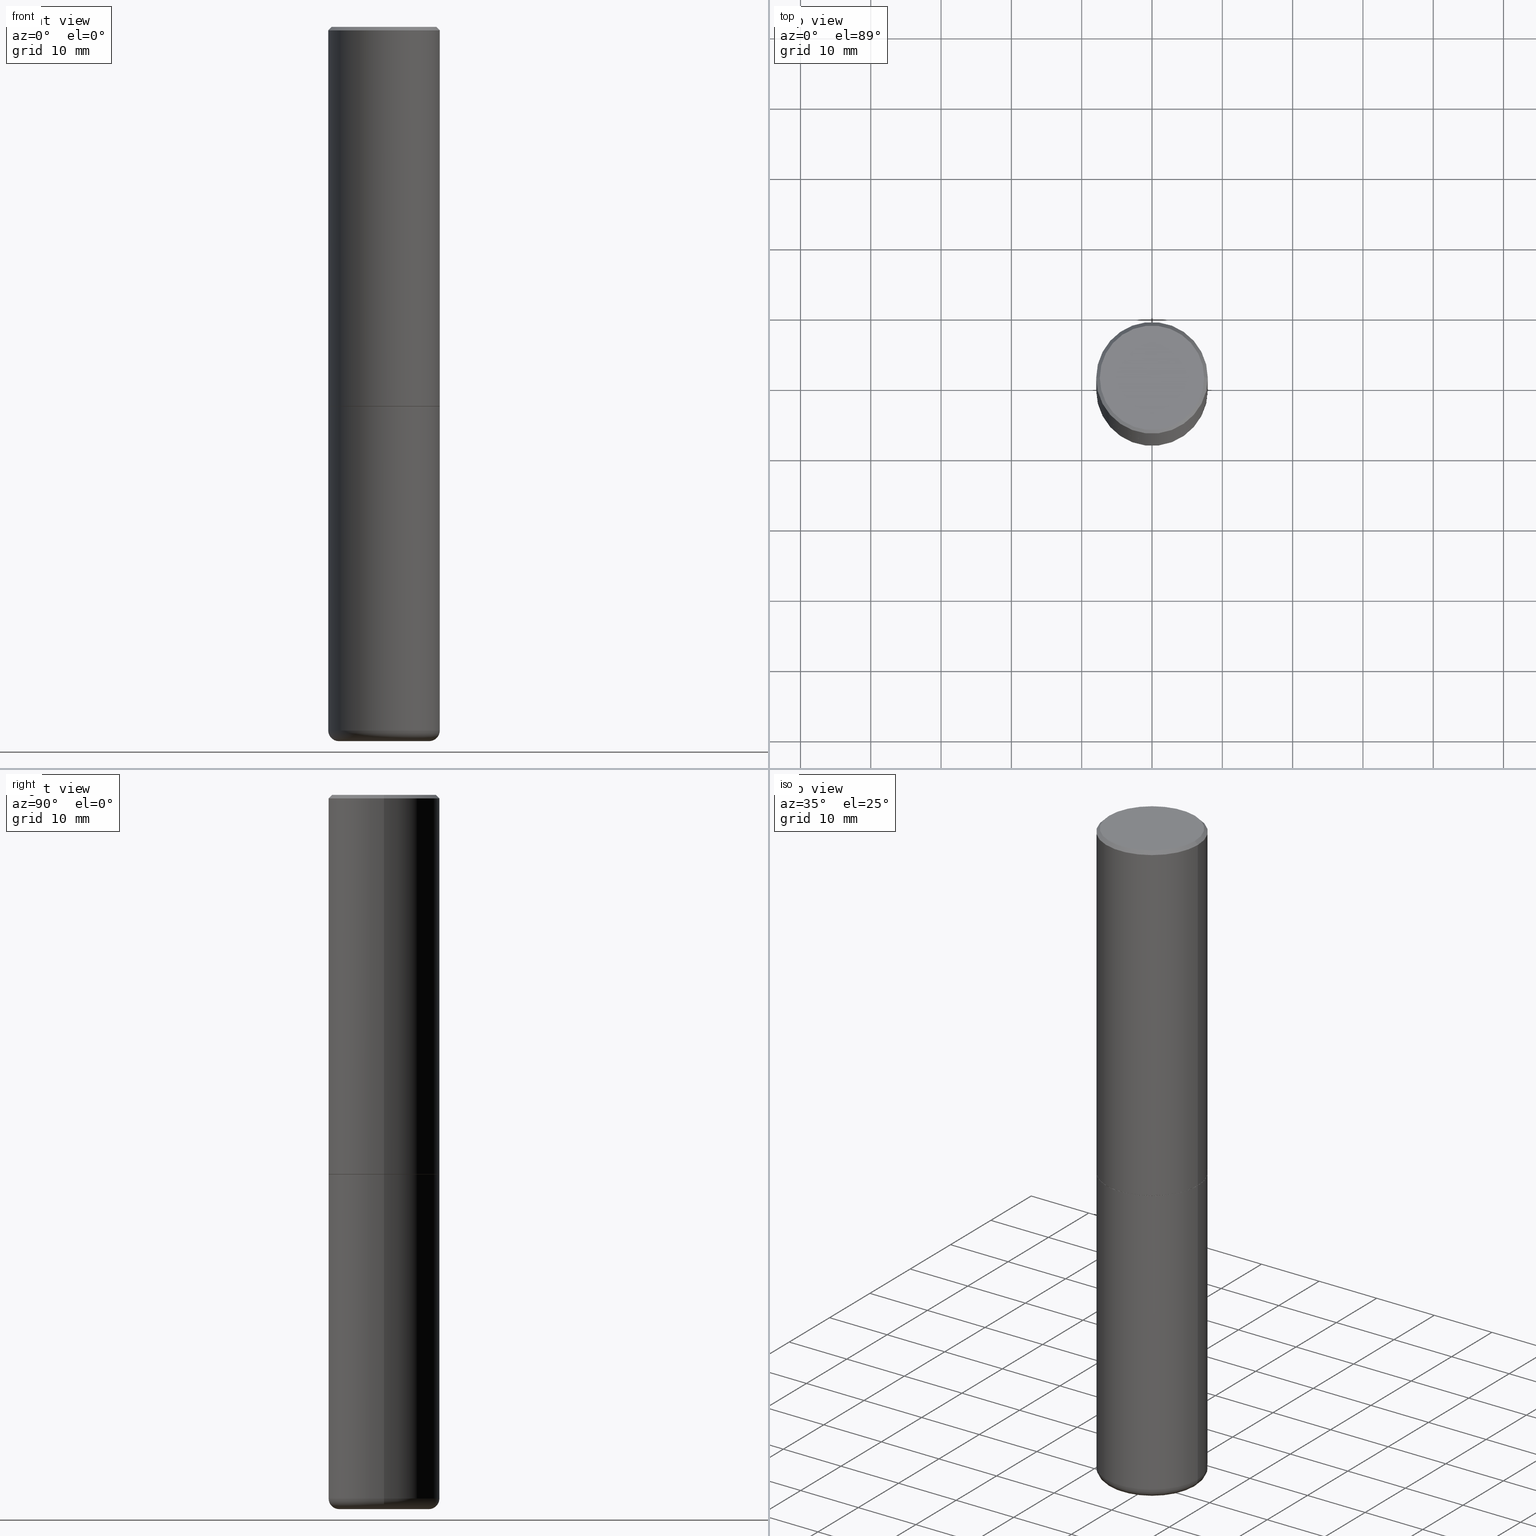
[diagram: canonical four-view strip — front | top / right | iso, engineering-drawing reading convention]
A machine part, canonical four-view strip (front | top / right | iso — engineering-drawing reading convention). The complete STEP part file that produces these views, byte-faithful:
ISO-10303-21;
HEADER;
FILE_DESCRIPTION (( 'STEP AP203' ),
    '1' );
FILE_NAME ('77396.STEP',
    '2024-05-02T19:36:04',
    ( '' ),
    ( '' ),
    'SwSTEP 2.0',
    'SolidWorks 2023',
    '' );
FILE_SCHEMA (( 'CONFIG_CONTROL_DESIGN' ));
ENDSEC;

DATA;
#1 = EDGE_CURVE ( 'NONE', #283, #264, #153, .T. ) ;
#2 = DATE_AND_TIME ( #92, #38 ) ;
#3 = AXIS2_PLACEMENT_3D ( 'NONE', #329, #66, #107 ) ;
#4 = COORDINATED_UNIVERSAL_TIME_OFFSET ( 5, 0, .BEHIND. ) ;
#5 = TOROIDAL_SURFACE ( 'NONE', #161, 0.2525000000000000022, 0.06000000000000023370 ) ;
#6 = AXIS2_PLACEMENT_3D ( 'NONE', #221, #360, #166 ) ;
#7 = CARTESIAN_POINT ( 'NONE',  ( 5.196621213143415268E-29, -7.419397845041683624E-15, -2.125000000000000000 ) ) ;
#8 = PERSON_AND_ORGANIZATION_ROLE ( 'classification_officer' ) ;
#9 = EDGE_LOOP ( 'NONE', ( #99, #191 ) ) ;
#10 = PLANE ( 'NONE',  #326 ) ;
#11 = PERSON_AND_ORGANIZATION ( #242, #59 ) ;
#12 = ORIENTED_EDGE ( 'NONE', *, *, #35, .T. ) ;
#13 = CARTESIAN_POINT ( 'NONE',  ( -0.2925000000000002043, 2.077431396611664583E-15, -2.006200870347337854E-16 ) ) ;
#14 = CALENDAR_DATE ( 2024, 2, 5 ) ;
#15 = VERTEX_POINT ( 'NONE', #119 ) ;
#16 = CC_DESIGN_APPROVAL ( #220, ( #91 ) ) ;
#17 = DIRECTION ( 'NONE',  ( 1.000000000000000000, -6.982962677686266711E-15, 4.876176775795936353E-29 ) ) ;
#18 = ORIENTED_EDGE ( 'NONE', *, *, #323, .F. ) ;
#19 = DIRECTION ( 'NONE',  ( 0.000000000000000000, 0.000000000000000000, 1.000000000000000000 ) ) ;
#20 = EDGE_CURVE ( 'NONE', #301, #283, #60, .T. ) ;
#21 = ORIENTED_EDGE ( 'NONE', *, *, #155, .F. ) ;
#22 = PRODUCT ( '77396', '77396', '', ( #114 ) ) ;
#23 = FACE_OUTER_BOUND ( 'NONE', #43, .T. ) ;
#24 = AXIS2_PLACEMENT_3D ( 'NONE', #225, #101, #371 ) ;
#25 = DIRECTION ( 'NONE',  ( 7.105427357601001859E-15, 1.000000000000000000, -3.491481338843145583E-15 ) ) ;
#26 = VERTEX_POINT ( 'NONE', #307 ) ;
#27 = CC_DESIGN_PERSON_AND_ORGANIZATION_ASSIGNMENT ( #11, #263, ( #91 ) ) ;
#28 = CARTESIAN_POINT ( 'NONE',  ( 5.196621213143415268E-29, -7.419397845041683624E-15, -2.125000000000000000 ) ) ;
#29 = CIRCLE ( 'NONE', #179, 0.3125000000000000000 ) ;
#30 = AXIS2_PLACEMENT_3D ( 'NONE', #58, #93, #378 ) ;
#31 = ADVANCED_FACE ( 'NONE', ( #23 ), #178, .T. ) ;
#32 = APPROVAL_ROLE ( '' ) ;
#33 = AXIS2_PLACEMENT_3D ( 'NONE', #356, #74, #195 ) ;
#34 = EDGE_CURVE ( 'NONE', #327, #224, #393, .T. ) ;
#35 = EDGE_CURVE ( 'NONE', #15, #224, #208, .T. ) ;
#36 = CARTESIAN_POINT ( 'NONE',  ( -0.2525000000000000022, -1.185389768668500455E-14, -4.000000000000000888 ) ) ;
#37 = DIRECTION ( 'NONE',  ( -2.445468806185136597E-29, 3.491481338843145583E-15, 1.000000000000000000 ) ) ;
#38 = LOCAL_TIME ( 15, 36, 4.000000000000000000, #418 ) ;
#39 = VERTEX_POINT ( 'NONE', #157 ) ;
#40 = CONICAL_SURFACE ( 'NONE', #212, 0.3114999999999999991, 0.7853981633975507526 ) ;
#41 = VERTEX_POINT ( 'NONE', #228 ) ;
#42 = CARTESIAN_POINT ( 'NONE',  ( 5.196621213143415268E-29, -7.419397845041683624E-15, -2.125000000000000000 ) ) ;
#43 = EDGE_LOOP ( 'NONE', ( #348, #197, #304, #168 ) ) ;
#44 = ORIENTED_EDGE ( 'NONE', *, *, #1, .F. ) ;
#45 = AXIS2_PLACEMENT_3D ( 'NONE', #186, #190, #71 ) ;
#46 = EDGE_CURVE ( 'NONE', #224, #327, #312, .T. ) ;
#47 = CARTESIAN_POINT ( 'NONE',  ( 9.781875224740547508E-29, -1.396592535537258391E-14, -4.000000000000000888 ) ) ;
#48 = DIRECTION ( 'NONE',  ( 1.000000000000000000, -6.982962677686266711E-15, 4.873475059489872853E-29 ) ) ;
#49 = CARTESIAN_POINT ( 'NONE',  ( 4.890937612370289799E-31, -6.982962677686315028E-17, -0.02000000000000006981 ) ) ;
#50 = EDGE_LOOP ( 'NONE', ( #262, #138, #227, #226 ) ) ;
#51 = DIRECTION ( 'NONE',  ( -2.445468806185136597E-29, 3.491481338843145583E-15, 1.000000000000000000 ) ) ;
#52 = ADVANCED_FACE ( 'NONE', ( #110 ), #102, .T. ) ;
#53 = EDGE_CURVE ( 'NONE', #173, #167, #72, .T. ) ;
#54 = CARTESIAN_POINT ( 'NONE',  ( 0.3125000000000002776, -9.598082200479802119E-15, -2.123999999999999666 ) ) ;
#55 = CARTESIAN_POINT ( 'NONE',  ( 5.194175744337229665E-29, -7.415906363702840616E-15, -2.123999999999999666 ) ) ;
#56 = PLANE ( 'NONE',  #256 ) ;
#57 = DIRECTION ( 'NONE',  ( 1.000000000000000000, -6.982962677686266711E-15, 0.000000000000000000 ) ) ;
#58 = CARTESIAN_POINT ( 'NONE',  ( 5.196621213143415268E-29, -7.419397845041683624E-15, -2.125000000000000000 ) ) ;
#59 = ORGANIZATION ( 'UNSPECIFIED', 'UNSPECIFIED', '' ) ;
#60 = LINE ( 'NONE', #175, #300 ) ;
#61 = DIRECTION ( 'NONE',  ( -1.000000000000000000, 6.982962677686265922E-15, -4.876176775795935793E-29 ) ) ;
#62 = CARTESIAN_POINT ( 'NONE',  ( 0.3125000000000000000, -2.182175836776958347E-15, 1.523805242436230075E-29 ) ) ;
#63 = DIRECTION ( 'NONE',  ( -2.445468806185136597E-29, 3.491481338843145583E-15, 1.000000000000000000 ) ) ;
#64 = APPROVAL_PERSON_ORGANIZATION ( #233, #313, #32 ) ;
#65 = EDGE_CURVE ( 'NONE', #73, #269, #100, .T. ) ;
#66 = DIRECTION ( 'NONE',  ( -2.445468806185136597E-29, 3.491481338843145583E-15, 1.000000000000000000 ) ) ;
#67 = APPROVAL_PERSON_ORGANIZATION ( #351, #403, #106 ) ;
#68 = ADVANCED_FACE ( 'NONE', ( #134 ), #40, .T. ) ;
#69 = CLOSED_SHELL ( 'NONE', ( #332, #211, #349, #52, #219, #352 ) ) ;
#70 = DIRECTION ( 'NONE',  ( -2.445468806185136877E-29, 3.491481338843145188E-15, 1.000000000000000000 ) ) ;
#71 = DIRECTION ( 'NONE',  ( -1.000000000000000000, 6.982962677686266711E-15, 0.000000000000000000 ) ) ;
#72 = LINE ( 'NONE', #139, #406 ) ;
#73 = VERTEX_POINT ( 'NONE', #13 ) ;
#74 = DIRECTION ( 'NONE',  ( -2.445468806185136597E-29, 3.491481338843145583E-15, 1.000000000000000000 ) ) ;
#75 = AXIS2_PLACEMENT_3D ( 'NONE', #203, #51, #142 ) ;
#76 = ORIENTED_EDGE ( 'NONE', *, *, #315, .T. ) ;
#77 = AXIS2_PLACEMENT_3D ( 'NONE', #55, #63, #251 ) ;
#78 = CARTESIAN_POINT ( 'NONE',  ( -0.3125000000000000000, 2.112346210000095443E-15, -0.02000000000000006981 ) ) ;
#79 = EDGE_LOOP ( 'NONE', ( #85, #293, #198, #122 ) ) ;
#80 = APPLICATION_PROTOCOL_DEFINITION ( 'international standard', 'config_control_design', 1994, #187 ) ;
#81 = SHAPE_DEFINITION_REPRESENTATION ( #399, #253 ) ;
#82 = PLANE ( 'NONE',  #156 ) ;
#83 = ORIENTED_EDGE ( 'NONE', *, *, #334, .F. ) ;
#84 = CARTESIAN_POINT ( 'NONE',  ( 4.906101647375534649E-45, -7.004612900788104277E-31, -2.006200870347193887E-16 ) ) ;
#85 = ORIENTED_EDGE ( 'NONE', *, *, #309, .T. ) ;
#86 = VECTOR ( 'NONE', #385, 39.37007874015748143 ) ;
#87 = DIRECTION ( 'NONE',  ( 1.000000000000000000, -6.982962677686265922E-15, 0.000000000000000000 ) ) ;
#88 = DIRECTION ( 'NONE',  ( 1.000000000000000000, -6.982962677686266711E-15, 0.000000000000000000 ) ) ;
#89 = DIRECTION ( 'NONE',  ( -2.445468806185136877E-29, 3.491481338843145188E-15, 1.000000000000000000 ) ) ;
#90 = CARTESIAN_POINT ( 'NONE',  ( 0.3125000000000001665, -2.182175836776959530E-15, 1.523805242436230636E-29 ) ) ;
#91 = PRODUCT_DEFINITION_FORMATION_WITH_SPECIFIED_SOURCE ( 'ANY', '', #22, .NOT_KNOWN. ) ;
#92 = CALENDAR_DATE ( 2024, 2, 5 ) ;
#93 = DIRECTION ( 'NONE',  ( -2.445468806185136597E-29, 3.491481338843145583E-15, 1.000000000000000000 ) ) ;
#94 = CONICAL_SURFACE ( 'NONE', #45, 0.3125000000000000000, 0.7853981633974471688 ) ;
#95 = CARTESIAN_POINT ( 'NONE',  ( 5.194175744337229665E-29, -7.415906363702840616E-15, -2.123999999999999666 ) ) ;
#96 = VECTOR ( 'NONE', #306, 39.37007874015748143 ) ;
#97 = DIRECTION ( 'NONE',  ( -2.445468806185136597E-29, 3.491481338843145583E-15, 1.000000000000000000 ) ) ;
#98 = APPROVAL_ROLE ( '' ) ;
#99 = ORIENTED_EDGE ( 'NONE', *, *, #155, .T. ) ;
#100 = LINE ( 'NONE', #78, #361 ) ;
#101 = DIRECTION ( 'NONE',  ( -2.445468806185136597E-29, 3.491481338843145583E-15, 1.000000000000000000 ) ) ;
#102 = CYLINDRICAL_SURFACE ( 'NONE', #404, 0.3125000000000000000 ) ;
#103 = AXIS2_PLACEMENT_3D ( 'NONE', #143, #160, #336 ) ;
#104 = COORDINATED_UNIVERSAL_TIME_OFFSET ( 5, 0, .BEHIND. ) ;
#105 = ORIENTED_EDGE ( 'NONE', *, *, #53, .F. ) ;
#106 = APPROVAL_ROLE ( '' ) ;
#107 = DIRECTION ( 'NONE',  ( 1.000000000000000000, -6.982962677686265922E-15, 0.000000000000000000 ) ) ;
#108 = EDGE_LOOP ( 'NONE', ( #202, #412 ) ) ;
#109 = MANIFOLD_SOLID_BREP ( 'Body-Move/Copy2[2]', #164 ) ;
#110 = FACE_OUTER_BOUND ( 'NONE', #362, .T. ) ;
#111 =( LENGTH_UNIT ( ) NAMED_UNIT ( * ) SI_UNIT ( $, .METRE. ) );
#112 = ORIENTED_EDGE ( 'NONE', *, *, #130, .F. ) ;
#113 = FACE_OUTER_BOUND ( 'NONE', #333, .T. ) ;
#114 = MECHANICAL_CONTEXT ( 'NONE', #383, 'mechanical' ) ;
#115 = EDGE_LOOP ( 'NONE', ( #338, #18 ) ) ;
#116 = CC_DESIGN_SECURITY_CLASSIFICATION ( #236, ( #91 ) ) ;
#117 = ORIENTED_EDGE ( 'NONE', *, *, #286, .F. ) ;
#118 = PERSON_AND_ORGANIZATION_ROLE ( 'creator' ) ;
#119 = CARTESIAN_POINT ( 'NONE',  ( 0.3125000000000001665, -1.593861231181895394E-14, -3.939999999999999947 ) ) ;
#120 = CONICAL_SURFACE ( 'NONE', #3, 0.3114999999999999991, 0.7853981633975507526 ) ;
#121 = LINE ( 'NONE', #152, #86 ) ;
#122 = ORIENTED_EDGE ( 'NONE', *, *, #35, .F. ) ;
#123 = DIRECTION ( 'NONE',  ( -1.000000000000000000, 7.105427357600997914E-15, 0.000000000000000000 ) ) ;
#124 = TOROIDAL_SURFACE ( 'NONE', #103, 0.2525000000000000022, 0.06000000000000023370 ) ;
#125 = CC_DESIGN_PERSON_AND_ORGANIZATION_ASSIGNMENT ( #400, #8, ( #236 ) ) ;
#126 = DESIGN_CONTEXT ( 'detailed design', #187, 'design' ) ;
#127 = AXIS2_PLACEMENT_3D ( 'NONE', #210, #232, #379 ) ;
#128 = CARTESIAN_POINT ( 'NONE',  ( 4.906101647375534649E-45, -7.004612900788104277E-31, -2.006200870347193887E-16 ) ) ;
#129 = DIRECTION ( 'NONE',  ( 1.000000000000000000, -6.982962677686264344E-15, 4.883557194083112340E-29 ) ) ;
#130 = EDGE_CURVE ( 'NONE', #173, #73, #154, .T. ) ;
#131 = CALENDAR_DATE ( 2024, 2, 5 ) ;
#132 = CARTESIAN_POINT ( 'NONE',  ( 4.890937612370289799E-31, -6.982962677686315028E-17, -0.02000000000000006981 ) ) ;
#133 = EDGE_LOOP ( 'NONE', ( #231, #295, #330, #355 ) ) ;
#134 = FACE_OUTER_BOUND ( 'NONE', #150, .T. ) ;
#135 = ORIENTED_EDGE ( 'NONE', *, *, #286, .T. ) ;
#136 = PERSON_AND_ORGANIZATION ( #242, #59 ) ;
#137 = LOCAL_TIME ( 15, 36, 4.000000000000000000, #4 ) ;
#138 = ORIENTED_EDGE ( 'NONE', *, *, #184, .T. ) ;
#139 = CARTESIAN_POINT ( 'NONE',  ( 0.3125000000000000000, -2.213735251080466911E-15, -0.02000000000000006981 ) ) ;
#140 = ORIENTED_EDGE ( 'NONE', *, *, #20, .T. ) ;
#141 = ORIENTED_EDGE ( 'NONE', *, *, #158, .T. ) ;
#142 = DIRECTION ( 'NONE',  ( 1.000000000000000000, -6.982962677686266711E-15, 4.876176775795935232E-29 ) ) ;
#143 = CARTESIAN_POINT ( 'NONE',  ( 9.635147096369438236E-29, -1.375643647504199401E-14, -3.939999999999999947 ) ) ;
#144 = LENGTH_MEASURE_WITH_UNIT ( LENGTH_MEASURE( 0.02539999999999999897 ), #111 );
#145 =( GEOMETRIC_REPRESENTATION_CONTEXT ( 3 ) GLOBAL_UNCERTAINTY_ASSIGNED_CONTEXT ( ( #223 ) ) GLOBAL_UNIT_ASSIGNED_CONTEXT ( ( #276, #172, #177 ) ) REPRESENTATION_CONTEXT ( 'NONE', 'WORKASPACE' ) );
#146 = EDGE_CURVE ( 'NONE', #41, #264, #287, .T. ) ;
#147 = CARTESIAN_POINT ( 'NONE',  ( 0.000000000000000000, 0.000000000000000000, 0.000000000000000000 ) ) ;
#148 = ORIENTED_EDGE ( 'NONE', *, *, #65, .T. ) ;
#149 = DIRECTION ( 'NONE',  ( -2.445468806185136597E-29, 3.491481338843145583E-15, 1.000000000000000000 ) ) ;
#150 = EDGE_LOOP ( 'NONE', ( #366, #141, #171, #44 ) ) ;
#151 = CC_DESIGN_DATE_AND_TIME_ASSIGNMENT ( #328, #159, ( #236 ) ) ;
#152 = CARTESIAN_POINT ( 'NONE',  ( -0.3125000000000001665, 2.220446049250314264E-15, -1.537167215704658792E-29 ) ) ;
#153 = CIRCLE ( 'NONE', #77, 0.3125000000000002776 ) ;
#154 = CIRCLE ( 'NONE', #318, 0.2925000000000002043 ) ;
#155 = EDGE_CURVE ( 'NONE', #73, #173, #243, .T. ) ;
#156 = AXIS2_PLACEMENT_3D ( 'NONE', #278, #285, #244 ) ;
#157 = CARTESIAN_POINT ( 'NONE',  ( -0.3125000000000001665, -1.153599042579167936E-14, -3.939999999999999947 ) ) ;
#158 = EDGE_CURVE ( 'NONE', #301, #41, #246, .T. ) ;
#159 = DATE_TIME_ROLE ( 'classification_date' ) ;
#160 = DIRECTION ( 'NONE',  ( -2.445468806185136597E-29, 3.491481338843145583E-15, 1.000000000000000000 ) ) ;
#161 = AXIS2_PLACEMENT_3D ( 'NONE', #271, #392, #129 ) ;
#162 = DIRECTION ( 'NONE',  ( 1.000000000000000000, -6.982962677686265922E-15, 0.000000000000000000 ) ) ;
#163 = CARTESIAN_POINT ( 'NONE',  ( -0.3125000000000000000, 2.220446049250313081E-15, -1.537167215704658232E-29 ) ) ;
#164 = CLOSED_SHELL ( 'NONE', ( #373, #31, #217, #235, #343, #68, #394, #382 ) ) ;
#165 = ORIENTED_EDGE ( 'NONE', *, *, #53, .T. ) ;
#166 = DIRECTION ( 'NONE',  ( 1.000000000000000000, -6.982962677686269077E-15, 0.000000000000000000 ) ) ;
#167 = VERTEX_POINT ( 'NONE', #260 ) ;
#168 = ORIENTED_EDGE ( 'NONE', *, *, #416, .F. ) ;
#169 = LOCAL_TIME ( 15, 36, 4.000000000000000000, #230 ) ;
#170 = CARTESIAN_POINT ( 'NONE',  ( 0.2525000000000000022, -1.551963455115777730E-14, -3.939999999999999947 ) ) ;
#171 = ORIENTED_EDGE ( 'NONE', *, *, #146, .T. ) ;
#172 =( NAMED_UNIT ( * ) PLANE_ANGLE_UNIT ( ) SI_UNIT ( $, .RADIAN. ) );
#173 = VERTEX_POINT ( 'NONE', #396 ) ;
#174 = DIRECTION ( 'NONE',  ( -1.000000000000000000, 6.982962677686266711E-15, 0.000000000000000000 ) ) ;
#175 = CARTESIAN_POINT ( 'NONE',  ( -0.3114999999999999991, -5.206057223148971551E-15, -2.125000000000000000 ) ) ;
#176 = LINE ( 'NONE', #163, #387 ) ;
#177 =( NAMED_UNIT ( * ) SI_UNIT ( $, .STERADIAN. ) SOLID_ANGLE_UNIT ( ) );
#178 = CYLINDRICAL_SURFACE ( 'NONE', #415, 0.3125000000000001665 ) ;
#179 = AXIS2_PLACEMENT_3D ( 'NONE', #414, #342, #57 ) ;
#180 = EDGE_CURVE ( 'NONE', #26, #259, #345, .T. ) ;
#181 = ORIENTED_EDGE ( 'NONE', *, *, #1, .T. ) ;
#182 = AXIS2_PLACEMENT_3D ( 'NONE', #294, #25, #123 ) ;
#183 = CIRCLE ( 'NONE', #182, 0.06000000000000021289 ) ;
#184 = EDGE_CURVE ( 'NONE', #259, #39, #183, .T. ) ;
#185 = AXIS2_PLACEMENT_3D ( 'NONE', #28, #149, #87 ) ;
#186 = CARTESIAN_POINT ( 'NONE',  ( 4.890937612370289799E-31, -6.982962677686315028E-17, -0.02000000000000006981 ) ) ;
#187 = APPLICATION_CONTEXT ( 'configuration controlled 3d designs of mechanical parts and assemblies' ) ;
#188 = DIRECTION ( 'NONE',  ( 1.000000000000000000, -6.982962677686266711E-15, 4.873475059489872853E-29 ) ) ;
#189 = PERSON_AND_ORGANIZATION ( #242, #59 ) ;
#190 = DIRECTION ( 'NONE',  ( 2.445468806185136597E-29, -3.491481338843145583E-15, -1.000000000000000000 ) ) ;
#191 = ORIENTED_EDGE ( 'NONE', *, *, #130, .T. ) ;
#192 = DIRECTION ( 'NONE',  ( 1.000000000000000000, -6.982962677686269077E-15, 0.000000000000000000 ) ) ;
#193 = FACE_OUTER_BOUND ( 'NONE', #115, .T. ) ;
#194 = CIRCLE ( 'NONE', #24, 0.3125000000000000000 ) ;
#195 = DIRECTION ( 'NONE',  ( 1.000000000000000000, -6.982962677686269866E-15, 0.000000000000000000 ) ) ;
#196 = ORIENTED_EDGE ( 'NONE', *, *, #334, .T. ) ;
#197 = ORIENTED_EDGE ( 'NONE', *, *, #363, .T. ) ;
#198 = ORIENTED_EDGE ( 'NONE', *, *, #46, .F. ) ;
#199 = DIRECTION ( 'NONE',  ( 1.000000000000000000, -6.982962677686265922E-15, 0.000000000000000000 ) ) ;
#200 = CC_DESIGN_APPROVAL ( #403, ( #236 ) ) ;
#201 = CARTESIAN_POINT ( 'NONE',  ( 0.3125000000000000000, -9.601573681818641971E-15, -2.125000000000000000 ) ) ;
#202 = ORIENTED_EDGE ( 'NONE', *, *, #46, .T. ) ;
#203 = CARTESIAN_POINT ( 'NONE',  ( 0.000000000000000000, 0.000000000000000000, 0.000000000000000000 ) ) ;
#204 = EDGE_CURVE ( 'NONE', #264, #283, #284, .T. ) ;
#205 = CARTESIAN_POINT ( 'NONE',  ( -0.3114999999999999991, -5.200758768800747571E-15, -2.125000000000000000 ) ) ;
#206 = FACE_OUTER_BOUND ( 'NONE', #375, .T. ) ;
#207 = ORIENTED_EDGE ( 'NONE', *, *, #254, .T. ) ;
#208 = LINE ( 'NONE', #62, #257 ) ;
#209 = AXIS2_PLACEMENT_3D ( 'NONE', #147, #19, #347 ) ;
#210 = CARTESIAN_POINT ( 'NONE',  ( 0.000000000000000000, 0.000000000000000000, 0.000000000000000000 ) ) ;
#211 = ADVANCED_FACE ( 'NONE', ( #255 ), #5, .T. ) ;
#212 = AXIS2_PLACEMENT_3D ( 'NONE', #42, #266, #199 ) ;
#213 = APPROVAL_DATE_TIME ( #2, #313 ) ;
#214 = ORIENTED_EDGE ( 'NONE', *, *, #158, .F. ) ;
#215 = LOCAL_TIME ( 15, 36, 4.000000000000000000, #248 ) ;
#216 = DIRECTION ( 'NONE',  ( -1.000000000000000000, 6.982962677686265922E-15, -4.876176775795935793E-29 ) ) ;
#217 = ADVANCED_FACE ( 'NONE', ( #113 ), #94, .T. ) ;
#218 = AXIS2_PLACEMENT_3D ( 'NONE', #132, #237, #174 ) ;
#219 = ADVANCED_FACE ( 'NONE', ( #320 ), #124, .T. ) ;
#220 = APPROVAL ( #319, 'UNSPECIFIED' ) ;
#221 = CARTESIAN_POINT ( 'NONE',  ( 5.196621213143415268E-29, -7.419397845041683624E-15, -2.125000000000000000 ) ) ;
#222 = DATE_AND_TIME ( #258, #137 ) ;
#223 = UNCERTAINTY_MEASURE_WITH_UNIT (LENGTH_MEASURE( 1.000000000000000082E-05 ), #276, 'distance_accuracy_value', 'NONE');
#224 = VERTEX_POINT ( 'NONE', #201 ) ;
#225 = CARTESIAN_POINT ( 'NONE',  ( 9.635147096369438236E-29, -1.375643647504199401E-14, -3.939999999999999947 ) ) ;
#226 = ORIENTED_EDGE ( 'NONE', *, *, #388, .F. ) ;
#227 = ORIENTED_EDGE ( 'NONE', *, *, #309, .F. ) ;
#228 = CARTESIAN_POINT ( 'NONE',  ( 0.3114999999999999991, -9.594590719140955956E-15, -2.125000000000000000 ) ) ;
#229 = DIRECTION ( 'NONE',  ( -6.982962677686266711E-15, -1.000000000000000000, 3.491481338843145583E-15 ) ) ;
#230 = COORDINATED_UNIVERSAL_TIME_OFFSET ( 5, 0, .BEHIND. ) ;
#231 = ORIENTED_EDGE ( 'NONE', *, *, #184, .F. ) ;
#232 = DIRECTION ( 'NONE',  ( -2.445468806185136597E-29, 3.491481338843145583E-15, 1.000000000000000000 ) ) ;
#233 = PERSON_AND_ORGANIZATION ( #242, #59 ) ;
#234 = EDGE_LOOP ( 'NONE', ( #196, #140, #359, #398 ) ) ;
#235 = ADVANCED_FACE ( 'NONE', ( #324 ), #346, .T. ) ;
#236 = SECURITY_CLASSIFICATION ( '', '', #291 ) ;
#237 = DIRECTION ( 'NONE',  ( 2.445468806185136597E-29, -3.491481338843145583E-15, -1.000000000000000000 ) ) ;
#238 = CC_DESIGN_PERSON_AND_ORGANIZATION_ASSIGNMENT ( #136, #267, ( #22 ) ) ;
#239 = DIRECTION ( 'NONE',  ( 1.000000000000000000, -6.982962677686269866E-15, 0.000000000000000000 ) ) ;
#240 = DATE_TIME_ROLE ( 'creation_date' ) ;
#241 = CALENDAR_DATE ( 2024, 2, 5 ) ;
#242 = PERSON ( 'UNSPECIFIED', 'UNSPECIFIED', 'UNSPECIFIED', ('UNSPECIFIED'), ('UNSPECIFIED'), ('UNSPECIFIED') ) ;
#243 = CIRCLE ( 'NONE', #350, 0.2925000000000002043 ) ;
#244 = DIRECTION ( 'NONE',  ( -1.000000000000000000, 6.982962677686265922E-15, -4.876176775795935793E-29 ) ) ;
#245 = DIRECTION ( 'NONE',  ( -2.445468806185136597E-29, 3.491481338843145583E-15, 1.000000000000000000 ) ) ;
#246 = CIRCLE ( 'NONE', #411, 0.3114999999999999991 ) ;
#247 = FACE_OUTER_BOUND ( 'NONE', #79, .T. ) ;
#248 = COORDINATED_UNIVERSAL_TIME_OFFSET ( 5, 0, .BEHIND. ) ;
#249 = DIRECTION ( 'NONE',  ( -0.7071067811866199593, 7.493145998870616062E-15, 0.7071067811864750752 ) ) ;
#250 = LOCAL_TIME ( 15, 36, 4.000000000000000000, #104 ) ;
#251 = DIRECTION ( 'NONE',  ( 1.000000000000000000, -6.982962677686269077E-15, 0.000000000000000000 ) ) ;
#252 = CIRCLE ( 'NONE', #265, 0.3125000000000000000 ) ;
#253 = ADVANCED_BREP_SHAPE_REPRESENTATION ( '77396', ( #390, #109, #209 ), #145 ) ;
#254 = EDGE_CURVE ( 'NONE', #39, #15, #194, .T. ) ;
#255 = FACE_OUTER_BOUND ( 'NONE', #50, .T. ) ;
#256 = AXIS2_PLACEMENT_3D ( 'NONE', #374, #364, #61 ) ;
#257 = VECTOR ( 'NONE', #70, 39.37007874015748143 ) ;
#258 = CALENDAR_DATE ( 2024, 2, 5 ) ;
#259 = VERTEX_POINT ( 'NONE', #36 ) ;
#260 = CARTESIAN_POINT ( 'NONE',  ( 0.3125000000000000000, -2.213735251080466911E-15, -0.02000000000000006981 ) ) ;
#261 = CARTESIAN_POINT ( 'NONE',  ( 9.635147096369438236E-29, -1.375643647504199401E-14, -3.939999999999999947 ) ) ;
#262 = ORIENTED_EDGE ( 'NONE', *, *, #180, .T. ) ;
#263 = PERSON_AND_ORGANIZATION_ROLE ( 'design_supplier' ) ;
#264 = VERTEX_POINT ( 'NONE', #54 ) ;
#265 = AXIS2_PLACEMENT_3D ( 'NONE', #49, #289, #88 ) ;
#266 = DIRECTION ( 'NONE',  ( -2.445468806185136597E-29, 3.491481338843145583E-15, 1.000000000000000000 ) ) ;
#267 = PERSON_AND_ORGANIZATION_ROLE ( 'design_owner' ) ;
#268 = DIRECTION ( 'NONE',  ( -0.7071067811865466846, 2.468850131082247989E-15, -0.7071067811865483499 ) ) ;
#269 = VERTEX_POINT ( 'NONE', #292 ) ;
#270 = CYLINDRICAL_SURFACE ( 'NONE', #127, 0.3125000000000000000 ) ;
#271 = CARTESIAN_POINT ( 'NONE',  ( 9.635147096369438236E-29, -1.375643647504199401E-14, -3.939999999999999947 ) ) ;
#272 = APPLICATION_PROTOCOL_DEFINITION ( 'international standard', 'config_control_design', 1994, #383 ) ;
#273 = EDGE_CURVE ( 'NONE', #39, #327, #176, .T. ) ;
#274 = CIRCLE ( 'NONE', #380, 0.3125000000000000000 ) ;
#275 = DIRECTION ( 'NONE',  ( 1.000000000000000000, -6.982962677686269077E-15, 0.000000000000000000 ) ) ;
#276 =( CONVERSION_BASED_UNIT ( 'INCH', #144 ) LENGTH_UNIT ( ) NAMED_UNIT ( #386 ) );
#277 = PERSON_AND_ORGANIZATION ( #242, #59 ) ;
#278 = CARTESIAN_POINT ( 'NONE',  ( 2.042516583223234117E-15, 0.2925000000000002043, -1.121568335128980438E-15 ) ) ;
#279 = CC_DESIGN_PERSON_AND_ORGANIZATION_ASSIGNMENT ( #189, #397, ( #91 ) ) ;
#280 = FACE_OUTER_BOUND ( 'NONE', #9, .T. ) ;
#281 = EDGE_LOOP ( 'NONE', ( #105, #21, #148, #135 ) ) ;
#282 = CIRCLE ( 'NONE', #413, 0.06000000000000021289 ) ;
#283 = VERTEX_POINT ( 'NONE', #305 ) ;
#284 = CIRCLE ( 'NONE', #402, 0.3125000000000002776 ) ;
#285 = DIRECTION ( 'NONE',  ( 2.438088387897960049E-29, -3.491481338843145188E-15, -1.000000000000000000 ) ) ;
#286 = EDGE_CURVE ( 'NONE', #269, #167, #252, .T. ) ;
#287 = LINE ( 'NONE', #368, #377 ) ;
#288 = DATE_AND_TIME ( #131, #169 ) ;
#289 = DIRECTION ( 'NONE',  ( -2.445468806185136597E-29, 3.491481338843145583E-15, 1.000000000000000000 ) ) ;
#290 = DIRECTION ( 'NONE',  ( -2.445468806185136597E-29, 3.491481338843145583E-15, 1.000000000000000000 ) ) ;
#291 = SECURITY_CLASSIFICATION_LEVEL ( 'unclassified' ) ;
#292 = CARTESIAN_POINT ( 'NONE',  ( -0.3125000000000000000, 2.112346210000095443E-15, -0.02000000000000006981 ) ) ;
#293 = ORIENTED_EDGE ( 'NONE', *, *, #273, .T. ) ;
#294 = CARTESIAN_POINT ( 'NONE',  ( -0.2525000000000000022, -1.196231606724773985E-14, -3.939999999999999947 ) ) ;
#295 = ORIENTED_EDGE ( 'NONE', *, *, #323, .T. ) ;
#296 = ORIENTED_EDGE ( 'NONE', *, *, #34, .F. ) ;
#297 = CIRCLE ( 'NONE', #185, 0.3114999999999999991 ) ;
#298 = CIRCLE ( 'NONE', #311, 0.2525000000000000022 ) ;
#299 = PLANE ( 'NONE',  #417 ) ;
#300 = VECTOR ( 'NONE', #249, 39.37007874015748143 ) ;
#301 = VERTEX_POINT ( 'NONE', #205 ) ;
#302 = PRODUCT_DEFINITION ( 'UNKNOWN', '', #91, #126 ) ;
#303 = CC_DESIGN_DATE_AND_TIME_ASSIGNMENT ( #310, #240, ( #302 ) ) ;
#304 = ORIENTED_EDGE ( 'NONE', *, *, #315, .F. ) ;
#305 = CARTESIAN_POINT ( 'NONE',  ( -0.3125000000000002776, -1.522421945989534932E-15, -2.123999999999999666 ) ) ;
#306 = DIRECTION ( 'NONE',  ( -2.445468806185136877E-29, 3.491481338843145188E-15, 1.000000000000000000 ) ) ;
#307 = CARTESIAN_POINT ( 'NONE',  ( 0.2525000000000000022, -1.572912343148836720E-14, -4.000000000000000888 ) ) ;
#308 = CARTESIAN_POINT ( 'NONE',  ( -0.3125000000000000000, -8.367471110791524949E-15, -2.125000000000000000 ) ) ;
#309 = EDGE_CURVE ( 'NONE', #15, #39, #274, .T. ) ;
#310 = DATE_AND_TIME ( #241, #215 ) ;
#311 = AXIS2_PLACEMENT_3D ( 'NONE', #47, #376, #239 ) ;
#312 = CIRCLE ( 'NONE', #6, 0.3125000000000000000 ) ;
#313 = APPROVAL ( #369, 'UNSPECIFIED' ) ;
#314 = DIRECTION ( 'NONE',  ( 2.438088387897960049E-29, -3.491481338843145188E-15, -1.000000000000000000 ) ) ;
#315 = EDGE_CURVE ( 'NONE', #167, #269, #29, .T. ) ;
#316 = PRODUCT_RELATED_PRODUCT_CATEGORY ( 'detail', '', ( #22 ) ) ;
#317 = APPROVAL_PERSON_ORGANIZATION ( #277, #220, #98 ) ;
#318 = AXIS2_PLACEMENT_3D ( 'NONE', #128, #290, #48 ) ;
#319 = APPROVAL_STATUS ( 'not_yet_approved' ) ;
#320 = FACE_OUTER_BOUND ( 'NONE', #133, .T. ) ;
#321 = DIRECTION ( 'NONE',  ( -2.445468806185136597E-29, 3.491481338843145583E-15, 1.000000000000000000 ) ) ;
#322 = CARTESIAN_POINT ( 'NONE',  ( 0.000000000000000000, 0.000000000000000000, 0.000000000000000000 ) ) ;
#323 = EDGE_CURVE ( 'NONE', #259, #26, #298, .T. ) ;
#324 = FACE_OUTER_BOUND ( 'NONE', #281, .T. ) ;
#325 = EDGE_LOOP ( 'NONE', ( #395, #181, #408, #117 ) ) ;
#326 = AXIS2_PLACEMENT_3D ( 'NONE', #410, #314, #216 ) ;
#327 = VERTEX_POINT ( 'NONE', #308 ) ;
#328 = DATE_AND_TIME ( #14, #250 ) ;
#329 = CARTESIAN_POINT ( 'NONE',  ( 5.196621213143415268E-29, -7.419397845041683624E-15, -2.125000000000000000 ) ) ;
#330 = ORIENTED_EDGE ( 'NONE', *, *, #388, .T. ) ;
#331 = DIRECTION ( 'NONE',  ( -2.438088387897960049E-29, 3.491481338843145188E-15, 1.000000000000000000 ) ) ;
#332 = ADVANCED_FACE ( 'NONE', ( #247 ), #270, .T. ) ;
#333 = EDGE_LOOP ( 'NONE', ( #112, #165, #76, #370 ) ) ;
#334 = EDGE_CURVE ( 'NONE', #41, #301, #297, .T. ) ;
#335 = DIRECTION ( 'NONE',  ( 0.7071067811865466846, -7.319954787623252890E-15, -0.7071067811865483499 ) ) ;
#336 = DIRECTION ( 'NONE',  ( 1.000000000000000000, -6.982962677686264344E-15, 4.883557194083112340E-29 ) ) ;
#337 = DIRECTION ( 'NONE',  ( 1.000000000000000000, -6.982962677686275388E-15, 0.000000000000000000 ) ) ;
#338 = ORIENTED_EDGE ( 'NONE', *, *, #180, .F. ) ;
#339 = FACE_OUTER_BOUND ( 'NONE', #325, .T. ) ;
#340 = DIRECTION ( 'NONE',  ( -2.445468806185136597E-29, 3.491481338843145583E-15, 1.000000000000000000 ) ) ;
#341 = FACE_OUTER_BOUND ( 'NONE', #108, .T. ) ;
#342 = DIRECTION ( 'NONE',  ( -2.445468806185136597E-29, 3.491481338843145583E-15, 1.000000000000000000 ) ) ;
#343 = ADVANCED_FACE ( 'NONE', ( #339 ), #367, .T. ) ;
#344 = DIRECTION ( 'NONE',  ( 1.000000000000000000, -6.982962677686266711E-15, 4.876176775795935232E-29 ) ) ;
#345 = CIRCLE ( 'NONE', #33, 0.2525000000000000022 ) ;
#346 = CONICAL_SURFACE ( 'NONE', #218, 0.3125000000000000000, 0.7853981633974471688 ) ;
#347 = DIRECTION ( 'NONE',  ( 1.000000000000000000, 0.000000000000000000, 0.000000000000000000 ) ) ;
#348 = ORIENTED_EDGE ( 'NONE', *, *, #204, .T. ) ;
#349 = ADVANCED_FACE ( 'NONE', ( #341 ), #56, .F. ) ;
#350 = AXIS2_PLACEMENT_3D ( 'NONE', #84, #97, #188 ) ;
#351 = PERSON_AND_ORGANIZATION ( #242, #59 ) ;
#352 = ADVANCED_FACE ( 'NONE', ( #193 ), #10, .T. ) ;
#353 = DIRECTION ( 'NONE',  ( -2.445468806185136597E-29, 3.491481338843145583E-15, 1.000000000000000000 ) ) ;
#354 = APPROVAL_DATE_TIME ( #222, #220 ) ;
#355 = ORIENTED_EDGE ( 'NONE', *, *, #254, .F. ) ;
#356 = CARTESIAN_POINT ( 'NONE',  ( 9.781875224740547508E-29, -1.396592535537258391E-14, -4.000000000000000888 ) ) ;
#357 = APPROVAL_STATUS ( 'not_yet_approved' ) ;
#358 = FACE_OUTER_BOUND ( 'NONE', #234, .T. ) ;
#359 = ORIENTED_EDGE ( 'NONE', *, *, #204, .F. ) ;
#360 = DIRECTION ( 'NONE',  ( -2.445468806185136597E-29, 3.491481338843145583E-15, 1.000000000000000000 ) ) ;
#361 = VECTOR ( 'NONE', #268, 39.37007874015748143 ) ;
#362 = EDGE_LOOP ( 'NONE', ( #401, #207, #12, #296 ) ) ;
#363 = EDGE_CURVE ( 'NONE', #283, #269, #121, .T. ) ;
#364 = DIRECTION ( 'NONE',  ( 2.438088387897960049E-29, -3.491481338843145188E-15, -1.000000000000000000 ) ) ;
#365 = APPROVAL_DATE_TIME ( #288, #403 ) ;
#366 = ORIENTED_EDGE ( 'NONE', *, *, #20, .F. ) ;
#367 = CYLINDRICAL_SURFACE ( 'NONE', #75, 0.3125000000000001665 ) ;
#368 = CARTESIAN_POINT ( 'NONE',  ( 0.3114999999999999991, -9.594590719140955956E-15, -2.125000000000000000 ) ) ;
#369 = APPROVAL_STATUS ( 'not_yet_approved' ) ;
#370 = ORIENTED_EDGE ( 'NONE', *, *, #65, .F. ) ;
#371 = DIRECTION ( 'NONE',  ( 1.000000000000000000, -6.982962677686269077E-15, 0.000000000000000000 ) ) ;
#372 = CARTESIAN_POINT ( 'NONE',  ( 5.196621213143415268E-29, -7.419397845041683624E-15, -2.125000000000000000 ) ) ;
#373 = ADVANCED_FACE ( 'NONE', ( #358 ), #120, .T. ) ;
#374 = CARTESIAN_POINT ( 'NONE',  ( 5.196621213143415268E-29, -7.419397845041683624E-15, -2.125000000000000000 ) ) ;
#375 = EDGE_LOOP ( 'NONE', ( #83, #214 ) ) ;
#376 = DIRECTION ( 'NONE',  ( -2.445468806185136597E-29, 3.491481338843145583E-15, 1.000000000000000000 ) ) ;
#377 = VECTOR ( 'NONE', #405, 39.37007874015748143 ) ;
#378 = DIRECTION ( 'NONE',  ( 1.000000000000000000, -6.982962677686269077E-15, 0.000000000000000000 ) ) ;
#379 = DIRECTION ( 'NONE',  ( 1.000000000000000000, -6.982962677686266711E-15, 4.876176775795936353E-29 ) ) ;
#380 = AXIS2_PLACEMENT_3D ( 'NONE', #261, #340, #275 ) ;
#381 = CARTESIAN_POINT ( 'NONE',  ( 0.000000000000000000, 0.000000000000000000, 0.000000000000000000 ) ) ;
#382 = ADVANCED_FACE ( 'NONE', ( #280 ), #82, .F. ) ;
#383 = APPLICATION_CONTEXT ( 'configuration controlled 3d designs of mechanical parts and assemblies' ) ;
#384 = CC_DESIGN_PERSON_AND_ORGANIZATION_ASSIGNMENT ( #389, #118, ( #302 ) ) ;
#385 = DIRECTION ( 'NONE',  ( -2.445468806185136877E-29, 3.491481338843145188E-15, 1.000000000000000000 ) ) ;
#386 = DIMENSIONAL_EXPONENTS ( 1.000000000000000000, 0.000000000000000000, 0.000000000000000000, 0.000000000000000000, 0.000000000000000000, 0.000000000000000000, 0.000000000000000000 ) ;
#387 = VECTOR ( 'NONE', #89, 39.37007874015748143 ) ;
#388 = EDGE_CURVE ( 'NONE', #26, #15, #282, .T. ) ;
#389 = PERSON_AND_ORGANIZATION ( #242, #59 ) ;
#390 = MANIFOLD_SOLID_BREP ( 'Body-Move/Copy2[1]', #69 ) ;
#391 = CC_DESIGN_APPROVAL ( #313, ( #302 ) ) ;
#392 = DIRECTION ( 'NONE',  ( -2.445468806185136597E-29, 3.491481338843145583E-15, 1.000000000000000000 ) ) ;
#393 = CIRCLE ( 'NONE', #30, 0.3125000000000000000 ) ;
#394 = ADVANCED_FACE ( 'NONE', ( #206 ), #299, .F. ) ;
#395 = ORIENTED_EDGE ( 'NONE', *, *, #363, .F. ) ;
#396 = CARTESIAN_POINT ( 'NONE',  ( 0.2925000000000002043, -2.110215457714321114E-15, -2.006200870347048687E-16 ) ) ;
#397 = PERSON_AND_ORGANIZATION_ROLE ( 'creator' ) ;
#398 = ORIENTED_EDGE ( 'NONE', *, *, #146, .F. ) ;
#399 = PRODUCT_DEFINITION_SHAPE ( 'NONE', 'NONE',  #302 ) ;
#400 = PERSON_AND_ORGANIZATION ( #242, #59 ) ;
#401 = ORIENTED_EDGE ( 'NONE', *, *, #273, .F. ) ;
#402 = AXIS2_PLACEMENT_3D ( 'NONE', #95, #321, #192 ) ;
#403 = APPROVAL ( #357, 'UNSPECIFIED' ) ;
#404 = AXIS2_PLACEMENT_3D ( 'NONE', #322, #353, #17 ) ;
#405 = DIRECTION ( 'NONE',  ( 0.7071067811866199593, -2.468850131083015945E-15, 0.7071067811864750752 ) ) ;
#406 = VECTOR ( 'NONE', #335, 39.37007874015748143 ) ;
#407 = LINE ( 'NONE', #90, #96 ) ;
#408 = ORIENTED_EDGE ( 'NONE', *, *, #416, .T. ) ;
#409 = DIRECTION ( 'NONE',  ( 1.000000000000000000, -6.982962677686265922E-15, 4.876176775795935793E-29 ) ) ;
#410 = CARTESIAN_POINT ( 'NONE',  ( 3.737869654564021101E-29, -2.262128533529896139E-14, -4.000000000000000000 ) ) ;
#411 = AXIS2_PLACEMENT_3D ( 'NONE', #7, #37, #162 ) ;
#412 = ORIENTED_EDGE ( 'NONE', *, *, #34, .T. ) ;
#413 = AXIS2_PLACEMENT_3D ( 'NONE', #170, #229, #337 ) ;
#414 = CARTESIAN_POINT ( 'NONE',  ( 4.890937612370289799E-31, -6.982962677686315028E-17, -0.02000000000000006981 ) ) ;
#415 = AXIS2_PLACEMENT_3D ( 'NONE', #381, #245, #344 ) ;
#416 = EDGE_CURVE ( 'NONE', #264, #167, #407, .T. ) ;
#417 = AXIS2_PLACEMENT_3D ( 'NONE', #372, #331, #409 ) ;
#418 = COORDINATED_UNIVERSAL_TIME_OFFSET ( 5, 0, .BEHIND. ) ;
ENDSEC;
END-ISO-10303-21;
